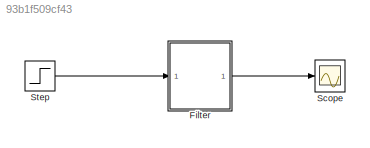
MODEL slx_93b1f509cf43
KIND model
CONFIG AbsTol = auto
CONFIG EnableMultiTasking = off
CONFIG FixedStep = auto
CONFIG MaxStep = auto
CONFIG MinStep = auto
CONFIG RelTol = 1e-3
CONFIG SampleTimeConstraint = Unconstrained
CONFIG Solver = VariableStepAuto
CONFIG SolverName = VariableStepAuto
CONFIG StartTime = 0.0
CONFIG StopTime = 10.0
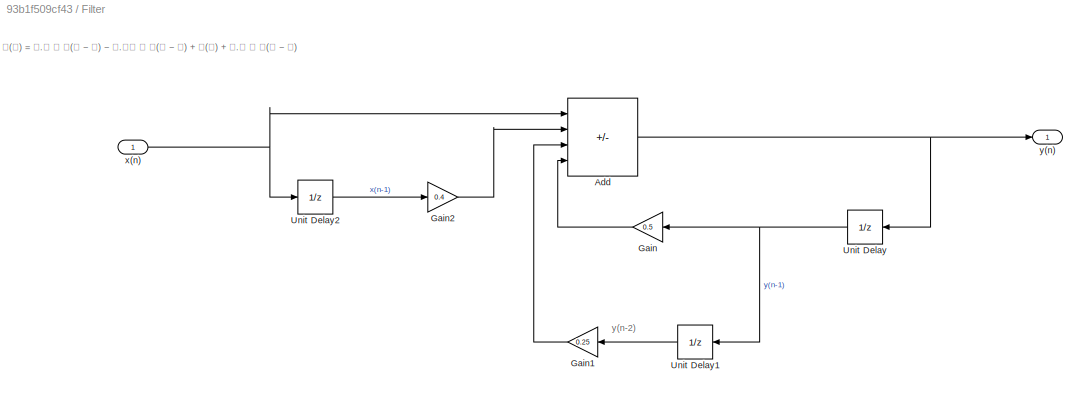
BLOCK [SubSystem] Filter
  Ports = [1, 1]
  RequestExecContextInheritance = off
BLOCK [Sum] Filter/Add
  IconShape = rectangular
  Inputs = ++-+
  Ports = [4, 1]
BLOCK [Gain] Filter/Gain
  Gain = 0.5
BLOCK [Gain] Filter/Gain1
  Gain = 0.25
BLOCK [Gain] Filter/Gain2
  Gain = 0.4
BLOCK [UnitDelay] Filter/Unit Delay
  HasFrameUpgradeWarning = on
  SampleTime = -1
BLOCK [UnitDelay] Filter/Unit Delay1
  HasFrameUpgradeWarning = on
  SampleTime = -1
BLOCK [UnitDelay] Filter/Unit Delay2
  HasFrameUpgradeWarning = on
  SampleTime = -1
BLOCK [Inport] Filter/x(n)
BLOCK [Outport] Filter/y(n)
BLOCK [Scope] Scope
  Floating = off
  NumInputPorts = 1
  Ports = [1]
  ScopeSpecificationString = Simulink.scopes.TimeScopeBlockCfg('CurrentConfiguration', extmgr.ConfigurationSet(extmgr.Configuration('Core','General UI',true),extmgr.Configuration('Core','Source UI',true),extmgr.Configuration('Sources','WiredSimulink',true),extmgr.Configuration('Visuals','Time Domain',true,'SerializedDisplays',{struct('MinYLimReal','-0.2625','MaxYLimReal','2.3625','YLabelReal','','MinYLimMag','0.00000','MaxYLi...<+1320ch>
BLOCK [Step] Step
  SampleTime = 0.01
ANNOTATION Filter: 𝐲(𝐧) = 𝟎.𝟓 ∗ 𝐲(𝐧 − 𝟏) − 𝟎.𝟐𝟓 ∗ 𝐲(𝐧 − 𝟐) + 𝐱(𝐧) + 𝟎.𝟒 ∗ 𝐱(𝐧 − 𝟏)
ANNOTATION Filter: y(n-2)
NET Filter/Add:1 -> Filter/Unit Delay:1, Filter/y(n):1
LINE Filter/Gain1:1 -> Filter/Add:3
LINE Filter/Gain2:1 -> Filter/Add:2
LINE Filter/Gain:1 -> Filter/Add:4
LINE Filter/Unit Delay1:1 -> Filter/Gain1:1
LINE Filter/Unit Delay2:1 -> Filter/Gain2:1
NET Filter/Unit Delay:1 -> Filter/Gain:1, Filter/Unit Delay1:1
NET Filter/x(n):1 -> Filter/Add:1, Filter/Unit Delay2:1
LINE Filter:1 -> Scope:1
LINE Step:1 -> Filter:1
note: NET lines group one-source signal fan-out (src -> all destinations, sorted); 1:1 wires keep LINE
